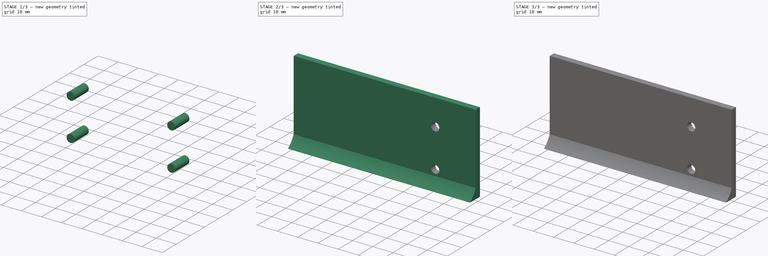
[diagram: build sequence overview — one tinted view per stage of 3, left to right]
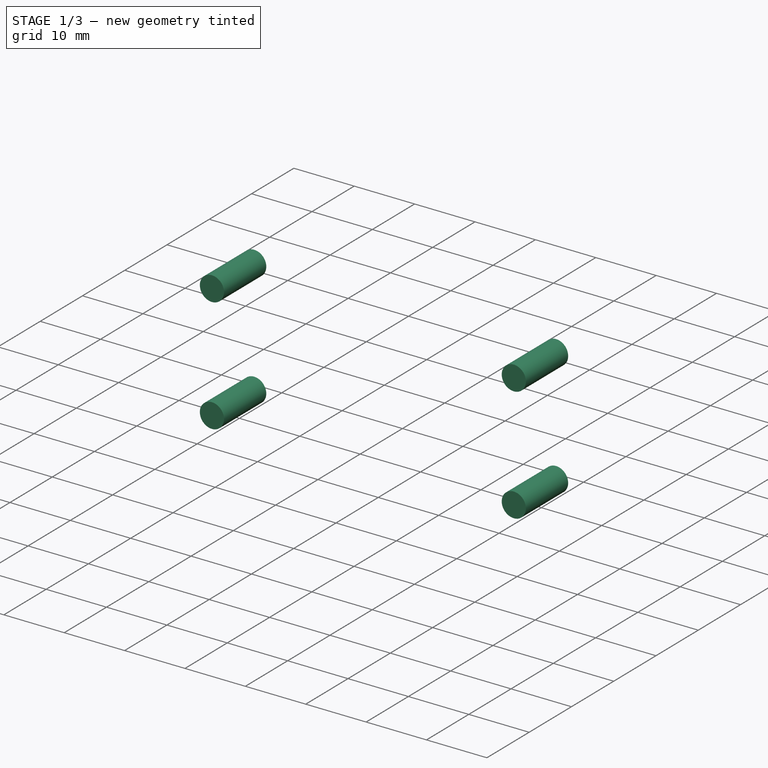
[diagram: stage 1 of 3 — iso view after this stage's code; geometry added in this stage tinted green]
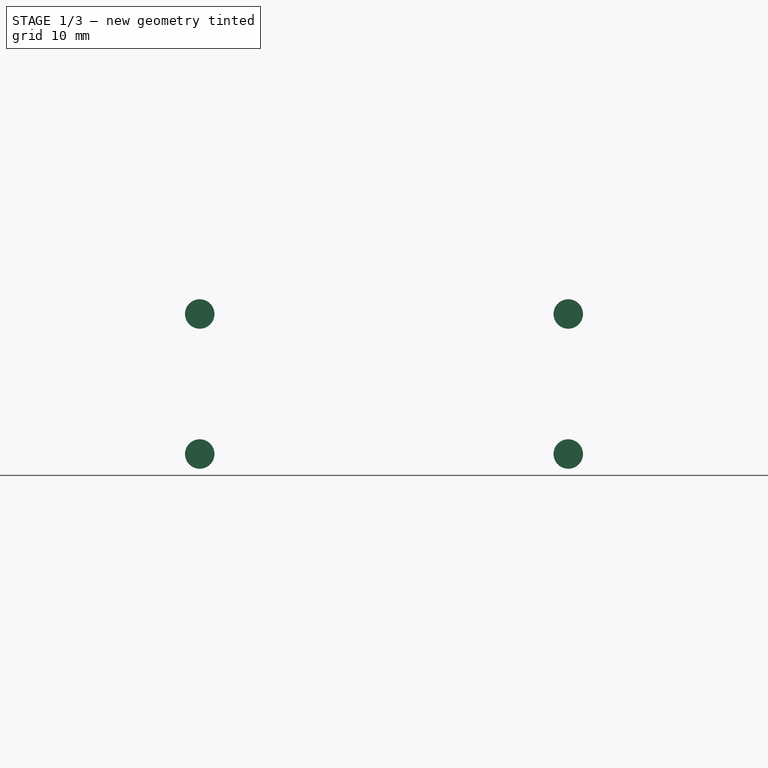
[diagram: stage 1 of 3 — front view after this stage's code; geometry added in this stage tinted green]
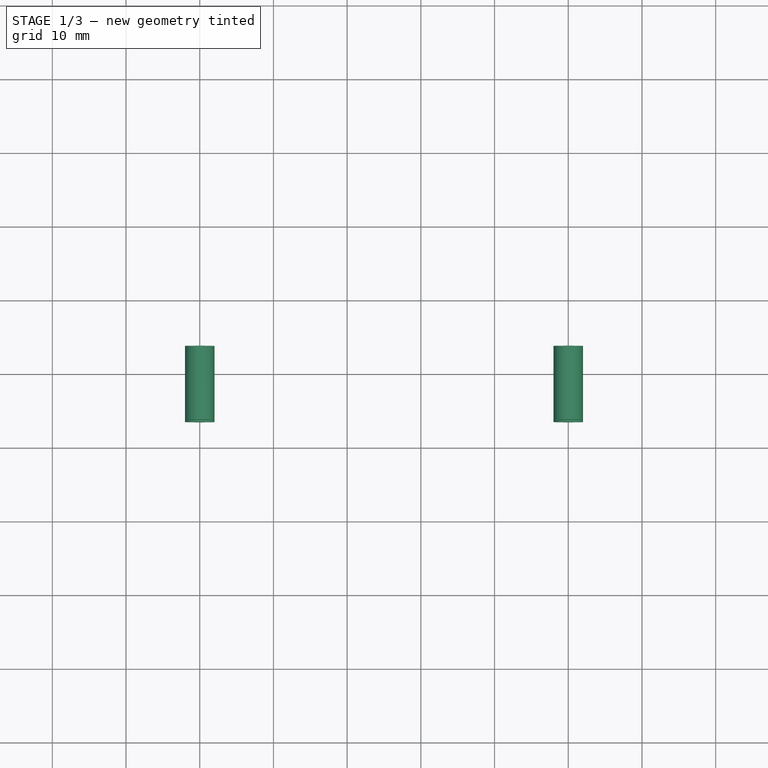
[diagram: stage 1 of 3 — top view after this stage's code; geometry added in this stage tinted green]
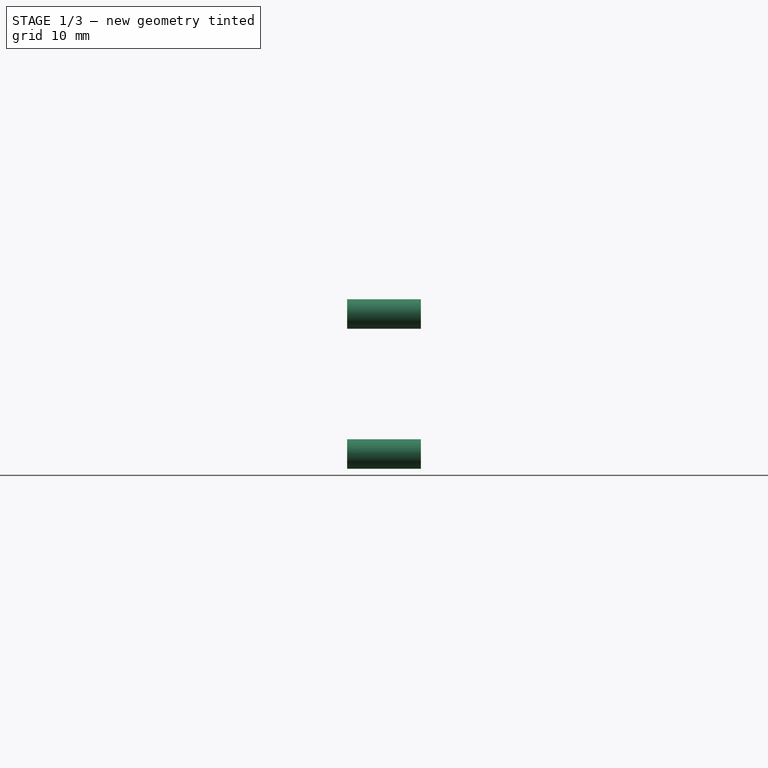
[diagram: stage 1 of 3 — right view after this stage's code; geometry added in this stage tinted green]
FCSTD DOCUMENT  (FreeCAD 0.20R29410 (Git))
Label: hit_planks
License: Creative Commons Attribution-ShareAlike
LicenseURL: http://creativecommons.org/licenses/by-sa/4.0/
objects: Sketcher::SketchObject×4, Part::Extrusion×4, Part::Cut×2
note: 10 computed .brp shape members not serialized (recipe doc carries the construction recipe); baked Part::Feature solids carry a one-line shape summary decoded from their .brp

FEATURE [Sketcher::SketchObject] Sketch002
  FullyConstrained = true
  Placement = pos=(0,0,0) rot=(0.57735,0.57735,0.57735;2.0944rad)
  sketch-geometry (5):
    g0: LineSegment StartX=1.5 StartY=20 StartZ=0 EndX=-1.5 EndY=20 EndZ=0
    g1: LineSegment StartX=-1.5 StartY=20 StartZ=0 EndX=-1.5 EndY=-15 EndZ=0
    g2: LineSegment StartX=1.5 StartY=20 StartZ=0 EndX=1.5 EndY=-20 EndZ=0
    g3: LineSegment StartX=1.5 StartY=-20 StartZ=0 EndX=-5.5 EndY=-20 EndZ=0
    g4: ArcOfCircle CenterX=-14 CenterY=-9.1 CenterZ=0 NormalX=0 NormalY=0 NormalZ=1 AngleXU=0 Radius=13.8224 StartAngle=5.3747 EndAngle=5.84219
  constraints (15):
    c: Horizontal(g0)
    c: Coincident(g0,g1)
    c: Vertical(g1)
    c: Coincident(g0,g2)
    c: Vertical(g2)
    c: Coincident(g2,g3)
    c: Horizontal(g3)
    c: DistanceY(g1,g1) = 35
    c: DistanceY(g2,g2) = 40
    c: DistanceX(g0,g0) = 3
    c: DistanceX(g3,g3) = 7
    c: Coincident(g4,g1)
    c: Coincident(g4,g3)
    c: DistanceX(g-2,g4) = -14
    c: Symmetric(g0,g2,g-1)
FEATURE [Part::Extrusion] Extrude002
  Base = -> Sketch002
  Dir = (1,0,0)
  DirMode = 2
  FaceMakerClass = Part::FaceMakerBullseye
  LengthFwd = 90
  LengthRev = 0
  Solid = true
  Symmetric = false
FEATURE [Sketcher::SketchObject] Sketch003
  FullyConstrained = false
  MapMode = 5
  Placement = pos=(0,-1.5,0) rot=(1,0,0;1.5708rad)
  Support = -> [Extrude002]
  sketch-geometry (9):
    g0: LineSegment StartX=0 StartY=-20 StartZ=0 EndX=94.3837 EndY=-20 EndZ=0
    g1: Circle CenterX=20 CenterY=-12 CenterZ=0 NormalX=0 NormalY=0 NormalZ=1 AngleXU=0 Radius=2
    g2: Circle CenterX=20 CenterY=7 CenterZ=0 NormalX=0 NormalY=0 NormalZ=1 AngleXU=0 Radius=2
    g3: LineSegment StartX=20 StartY=7 StartZ=0 EndX=20 EndY=-12 EndZ=0
    g4: GeomPoint X=45 Y=0 Z=0
    g5: LineSegment StartX=45 StartY=0 StartZ=0 EndX=45 EndY=14.6049 EndZ=0
    g6: Circle CenterX=70 CenterY=-12 CenterZ=0 NormalX=0 NormalY=0 NormalZ=1 AngleXU=0 Radius=2
    g7: Circle CenterX=70 CenterY=7 CenterZ=0 NormalX=0 NormalY=0 NormalZ=1 AngleXU=0 Radius=2
    g8: LineSegment StartX=70 StartY=7 StartZ=0 EndX=70 EndY=-12 EndZ=0
  constraints (21):
    c: PointOnObject(g0,g-2)
    c: Horizontal(g0)
    c: DistanceY(g0,g-1) = 20
    c: Diameter(g1) = 4
    c: Distance(g1,g0) = 8
    c: Diameter(g2) = 4
    c: Distance(g2,g1) = 19
    c: Coincident(g3,g2)
    c: Coincident(g3,g1)
    c: Vertical(g3)
    c: DistanceX(g-2,g2) = 20
    c: PointOnObject(g4,g-1)
    c: Coincident(g5,g4)
    c: Vertical(g5)
    c: DistanceX(g-1,g5) = 45
    c: Diameter(g6) = 4
    c: Diameter(g7) = 4
    c: Distance(g7,g6) = 19
    c: Coincident(g8,g7)
    c: Coincident(g8,g6)
    c: Vertical(g8)
FEATURE [Part::Extrusion] Extrude003
  Base = -> Sketch003
  Dir = (0,-1,2e-16)
  DirMode = 2
  FaceMakerClass = Part::FaceMakerBullseye
  LengthFwd = 10
  LengthRev = 0
  Solid = true
  Symmetric = true
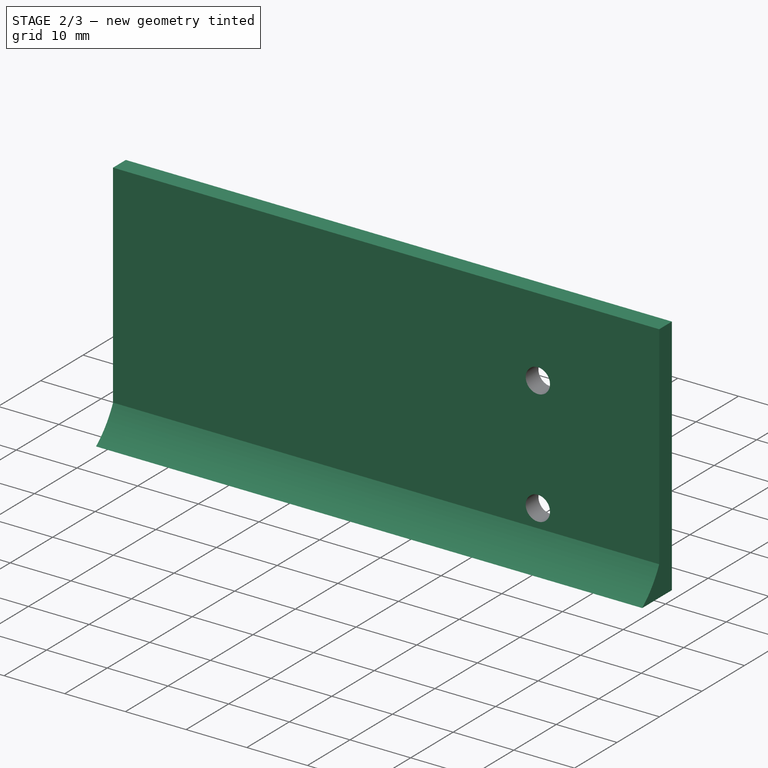
[diagram: stage 2 of 3 — iso view after this stage's code; geometry added in this stage tinted green]
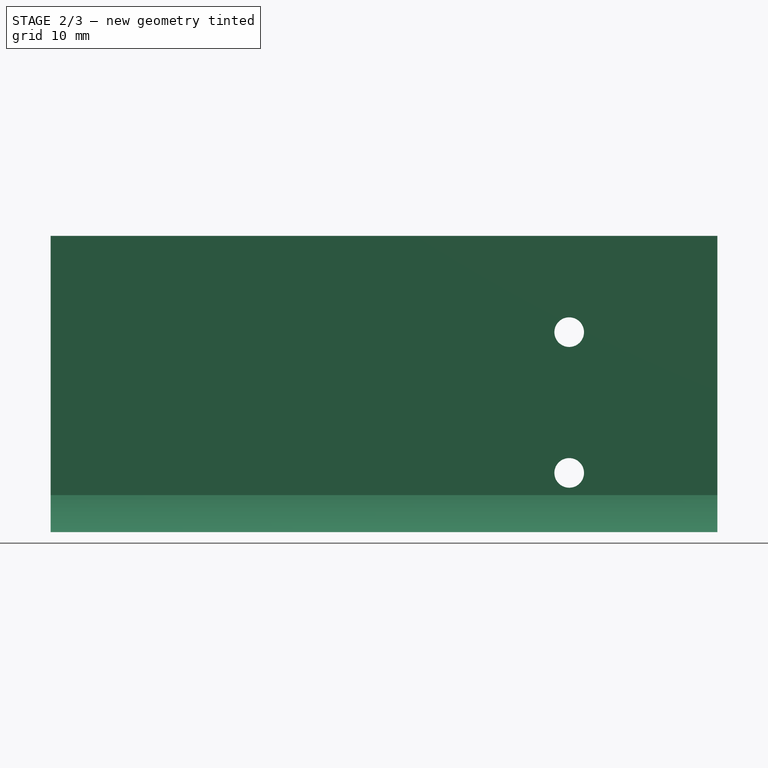
[diagram: stage 2 of 3 — front view after this stage's code; geometry added in this stage tinted green]
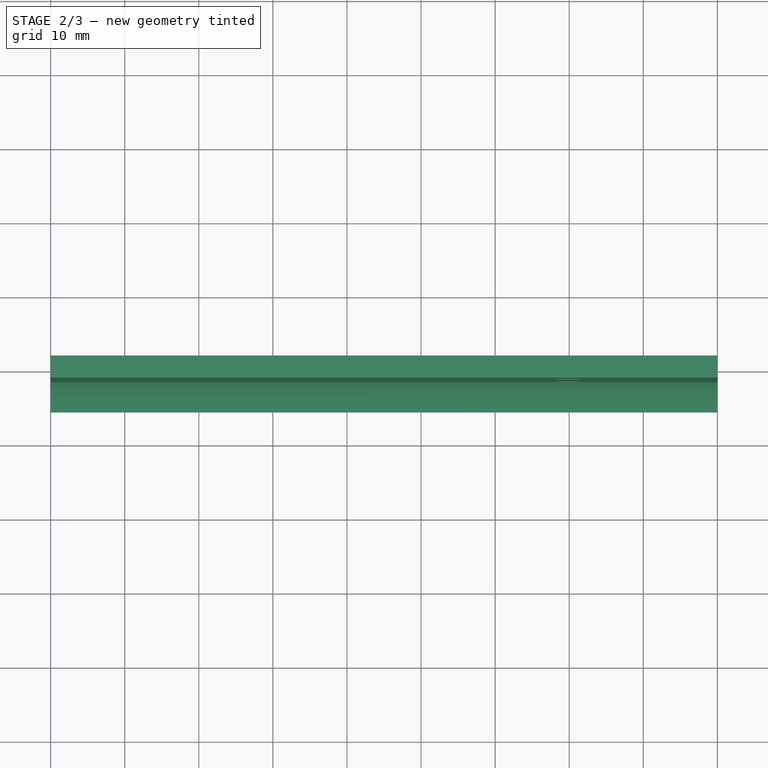
[diagram: stage 2 of 3 — top view after this stage's code; geometry added in this stage tinted green]
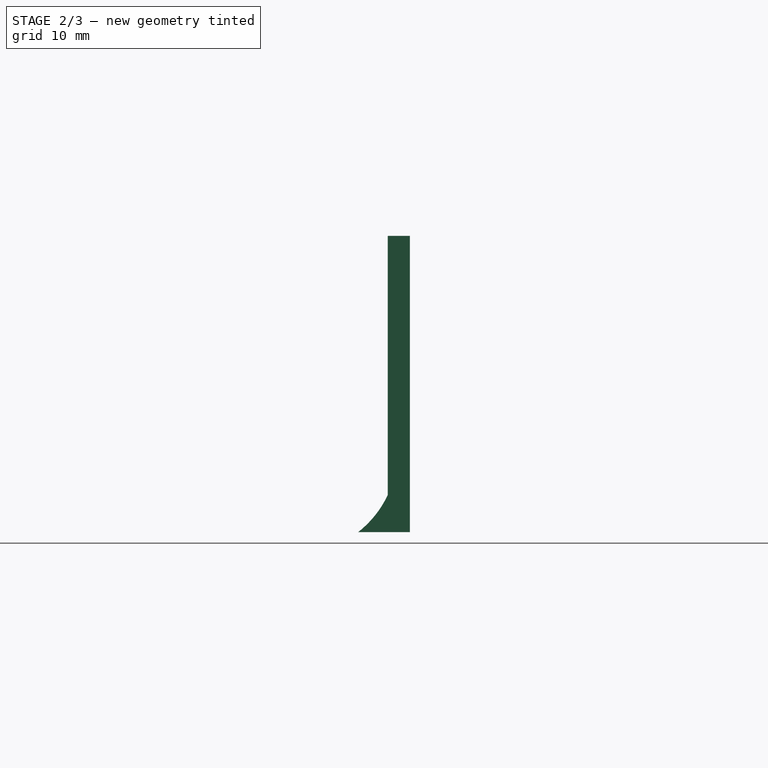
[diagram: stage 2 of 3 — right view after this stage's code; geometry added in this stage tinted green]
FEATURE [Sketcher::SketchObject] Sketch
  FullyConstrained = true
  Placement = pos=(0,0,0) rot=(0.57735,0.57735,0.57735;2.0944rad)
  sketch-geometry (5):
    g0: LineSegment StartX=-1.5 StartY=20 StartZ=0 EndX=1.5 EndY=20 EndZ=0
    g1: LineSegment StartX=1.5 StartY=20 StartZ=0 EndX=1.5 EndY=-20 EndZ=0
    g2: LineSegment StartX=-1.5 StartY=20 StartZ=0 EndX=-1.5 EndY=-15 EndZ=0
    g3: ArcOfCircle CenterX=-14 CenterY=-9.1 CenterZ=0 NormalX=0 NormalY=0 NormalZ=1 AngleXU=0 Radius=13.8224 StartAngle=5.3747 EndAngle=5.84219
    g4: LineSegment StartX=-5.5 StartY=-20 StartZ=0 EndX=1.5 EndY=-20 EndZ=0
  constraints (15):
    c: Horizontal(g0)
    c: Coincident(g0,g1)
    c: Vertical(g1)
    c: Coincident(g0,g2)
    c: Vertical(g2)
    c: DistanceY(g1,g1) = 40
    c: DistanceX(g0,g0) = 3
    c: DistanceY(g2,g2) = 35
    c: Coincident(g3,g2)
    c: Coincident(g4,g1)
    c: Horizontal(g4)
    c: Coincident(g3,g4)
    c: Symmetric(g1,g0,g-1)
    c: DistanceX(g-2,g3) = -14
    c: DistanceX(g4,g4) = 7
FEATURE [Part::Extrusion] Extrude
  Base = -> Sketch
  Dir = (1,0,0)
  DirMode = 2
  FaceMakerClass = Part::FaceMakerBullseye
  LengthFwd = 60
  LengthRev = 0
  Solid = true
  Symmetric = false
FEATURE [Part::Cut] Cut001  label="Center Hit Plank"
  Base = -> Extrude002
  Refine = true
  Tool = -> Extrude003
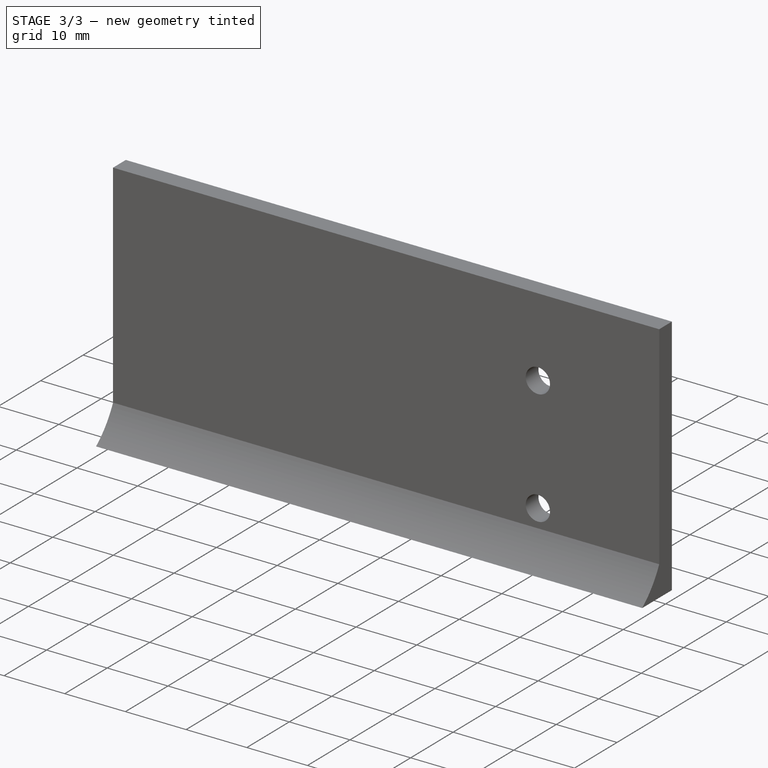
[diagram: stage 3 of 3 — iso view after this stage's code; geometry added in this stage tinted green]
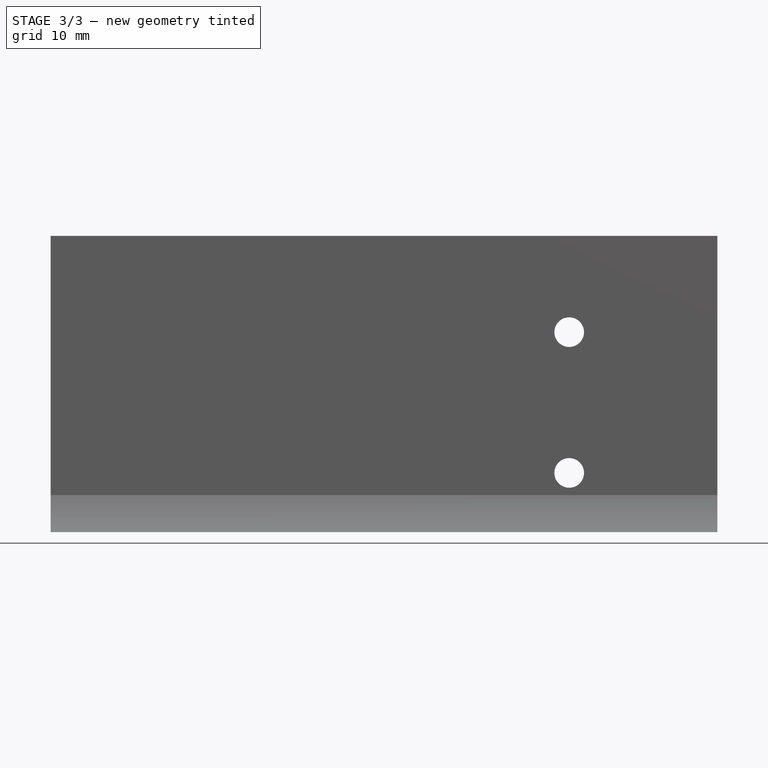
[diagram: stage 3 of 3 — front view after this stage's code; geometry added in this stage tinted green]
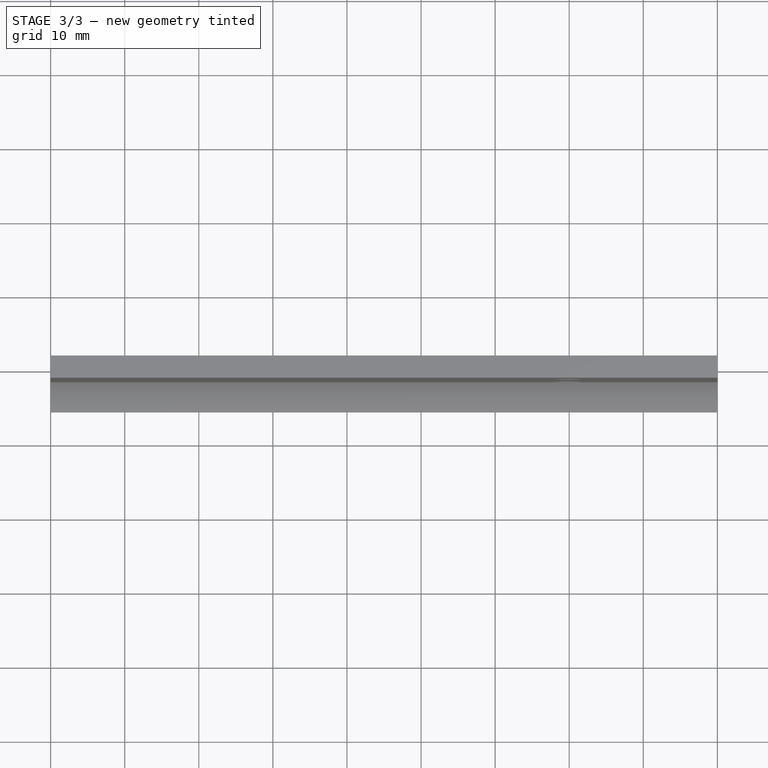
[diagram: stage 3 of 3 — top view after this stage's code; geometry added in this stage tinted green]
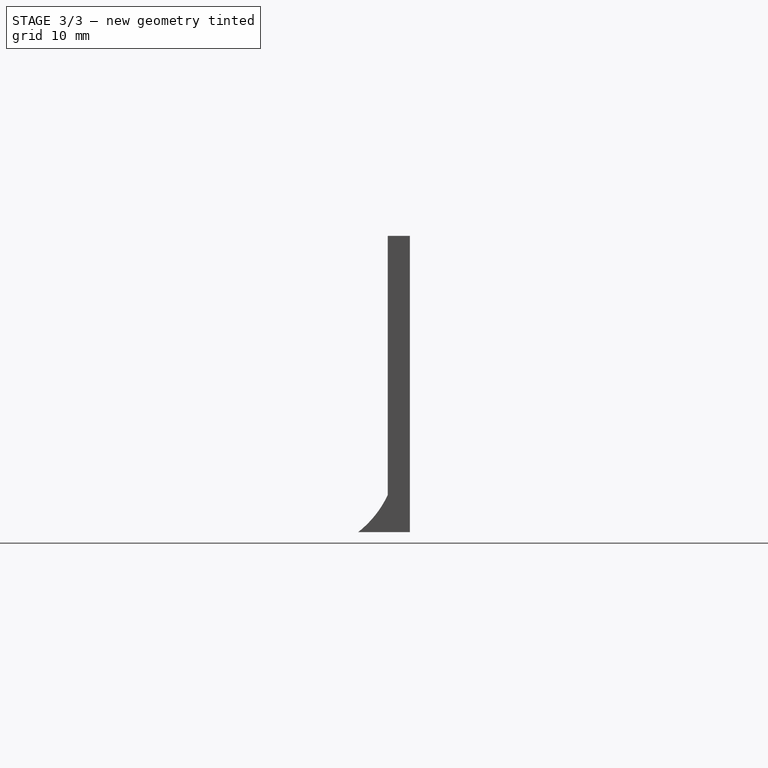
[diagram: stage 3 of 3 — right view after this stage's code; geometry added in this stage tinted green]
FEATURE [Sketcher::SketchObject] Sketch001
  FullyConstrained = false
  MapMode = 5
  Placement = pos=(0,-1.5,0) rot=(1,0,0;1.5708rad)
  Support = -> [Extrude]
  sketch-geometry (10):
    g0: GeomPoint X=0 Y=-20 Z=0
    g1: LineSegment StartX=0 StartY=-20 StartZ=0 EndX=71.5851 EndY=-20 EndZ=0
    g2: Circle CenterX=15 CenterY=-12 CenterZ=0 NormalX=0 NormalY=0 NormalZ=1 AngleXU=0 Radius=2
    g3: GeomPoint X=30 Y=0 Z=0
    g4: LineSegment StartX=30 StartY=0 StartZ=0 EndX=30 EndY=15.2713 EndZ=0
    g5: Circle CenterX=15 CenterY=7 CenterZ=0 NormalX=0 NormalY=0 NormalZ=1 AngleXU=0 Radius=2
    g6: LineSegment StartX=30 StartY=0 StartZ=0 EndX=30 EndY=-15.7305 EndZ=0
    g7: GeomPoint X=60 Y=-20 Z=0
    g8: Circle CenterX=45 CenterY=-12 CenterZ=0 NormalX=0 NormalY=0 NormalZ=1 AngleXU=0 Radius=2
    g9: Circle CenterX=45 CenterY=7 CenterZ=0 NormalX=0 NormalY=0 NormalZ=1 AngleXU=0 Radius=2
  constraints (19):
    c: PointOnObject(g0,g-2)
    c: DistanceY(g0,g-1) = 20
    c: Coincident(g1,g0)
    c: Horizontal(g1)
    c: PointOnObject(g3,g-1)
    c: Distance(g-1,g3) = 30
    c: Coincident(g4,g3)
    c: Vertical(g4)
    c: Distance(g2,g1) = 8
    c: Diameter(g2) = 4
    c: Distance(g5,g4) = 15
    c: Coincident(g6,g3)
    c: Vertical(g6)
    c: Distance(g2,g6) = 15
    c: Diameter(g5) = 4
    c: Distance(g5,g2) = 19
    c: Diameter(g8) = 4
    c: Diameter(g9) = 4
    c: Distance(g9,g8) = 19
FEATURE [Part::Extrusion] Extrude001
  Base = -> Sketch001
  Dir = (0,-1,2e-16)
  DirMode = 2
  FaceMakerClass = Part::FaceMakerBullseye
  LengthFwd = 10
  LengthRev = 0
  Solid = true
  Symmetric = true
FEATURE [Part::Cut] Cut  label="SIded Hit Plank"
  Base = -> Extrude
  Refine = true
  Tool = -> Extrude001
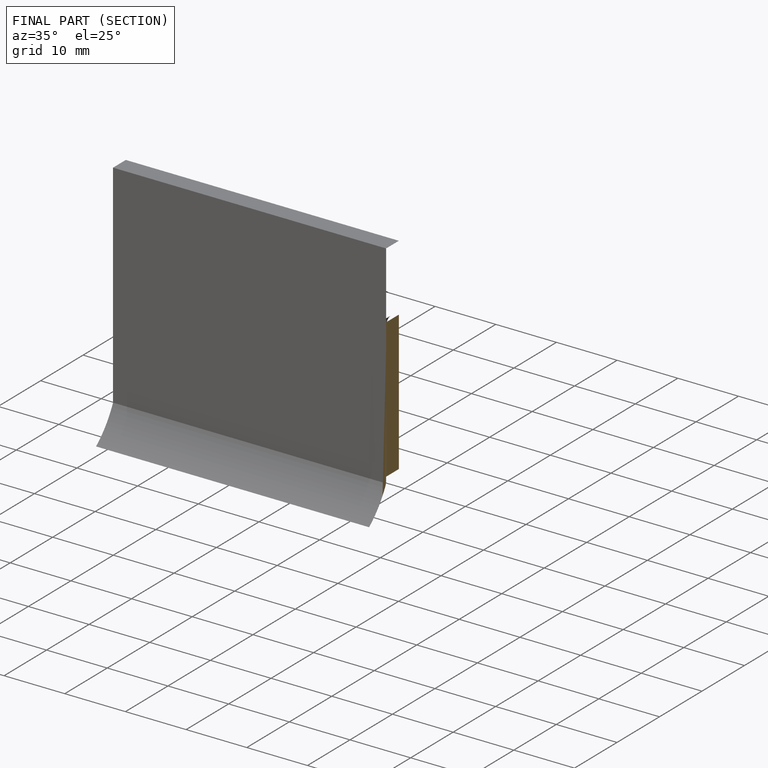
[diagram: finished part — half-section view (interior)]
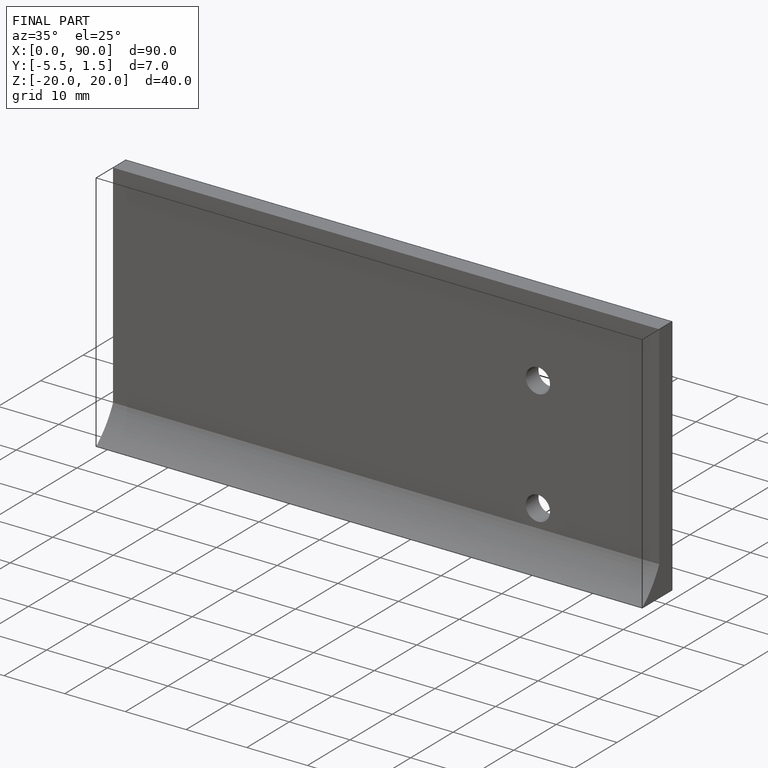
[diagram: finished part — iso view with bounding-box wireframe]
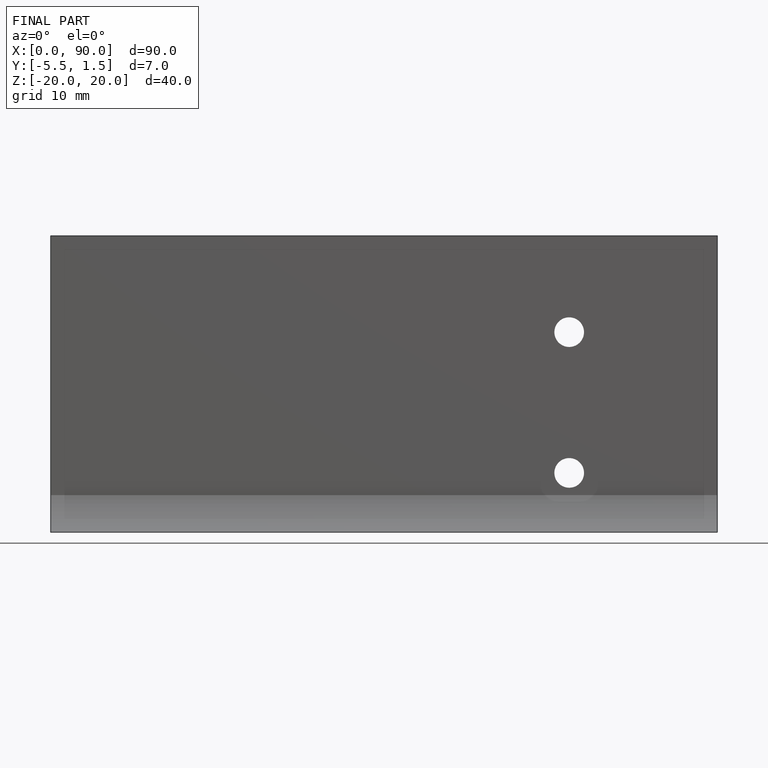
[diagram: finished part — front view with bounding-box wireframe]
